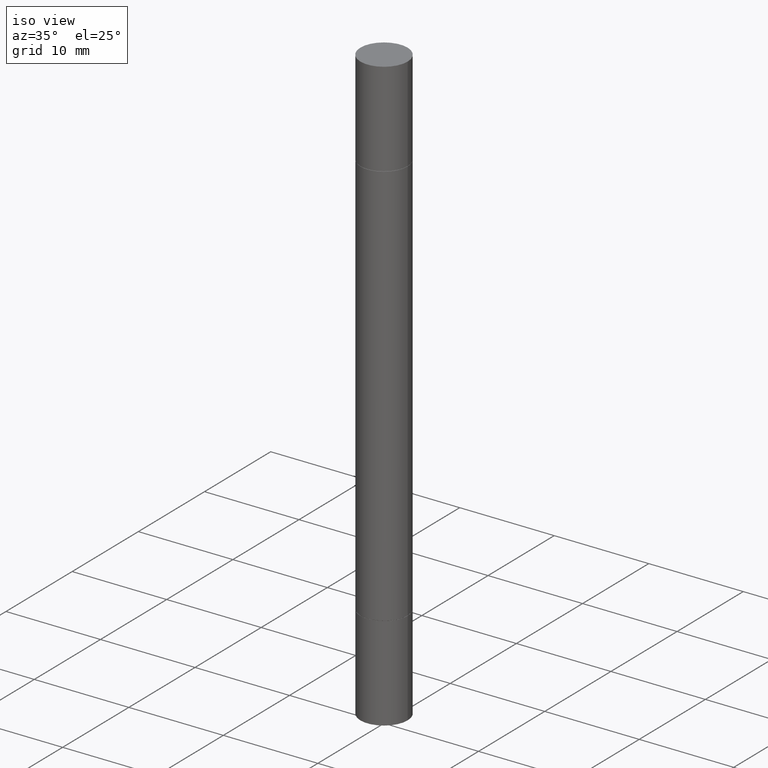
[diagram: clean part render]
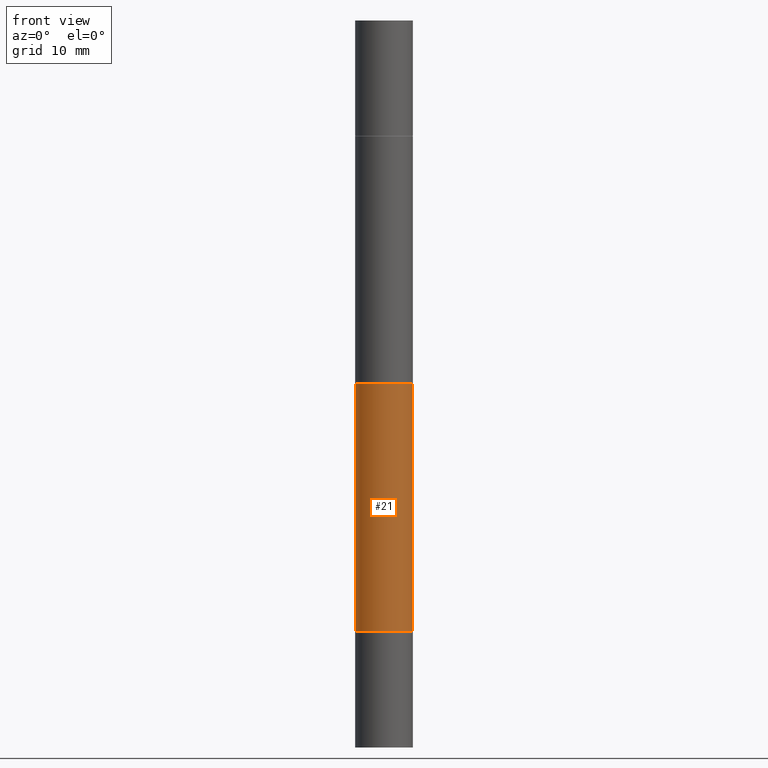
[diagram: tour spotlight — one face highlighted and labeled with its STEP entity id]
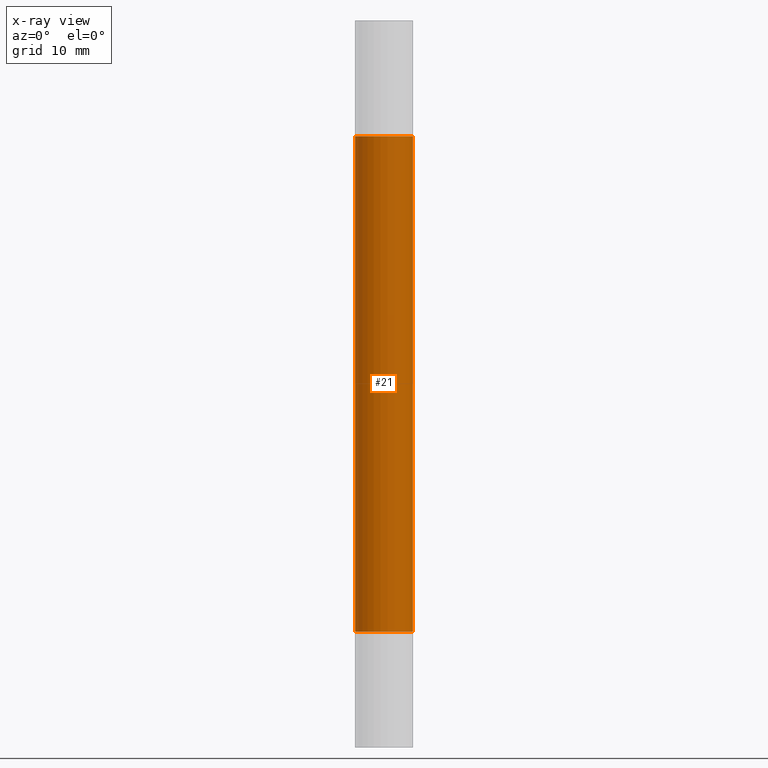
[diagram: x-ray of the same camera — body ghosted, this tour face saturated]
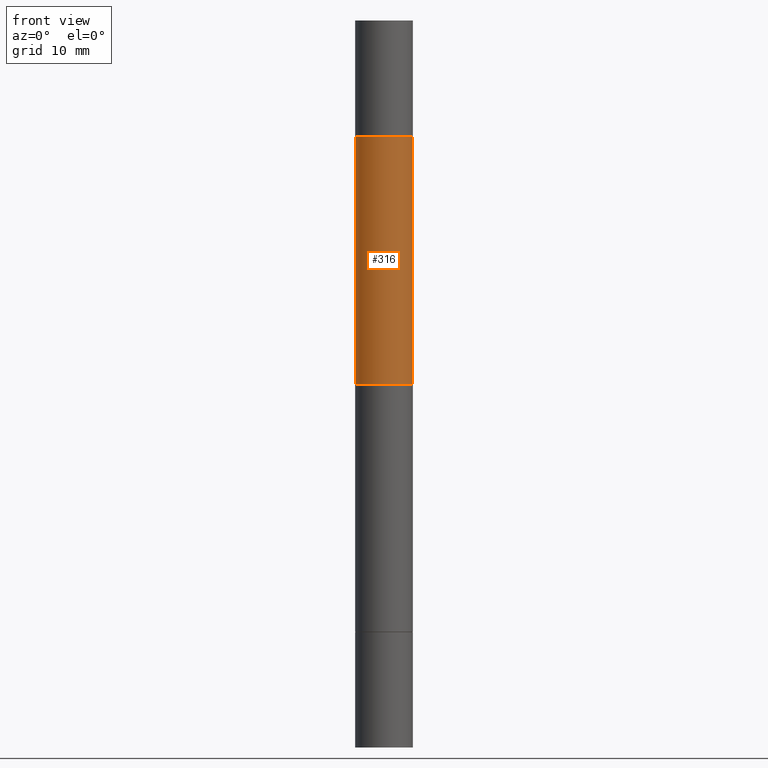
[diagram: tour spotlight — one face highlighted and labeled with its STEP entity id]
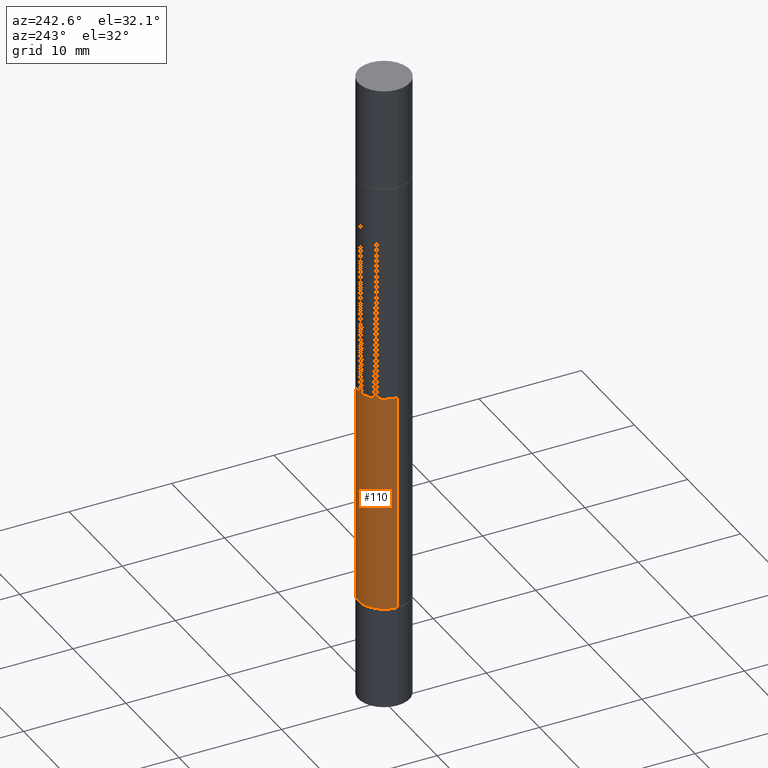
[diagram: tour spotlight — one face highlighted and labeled with its STEP entity id]
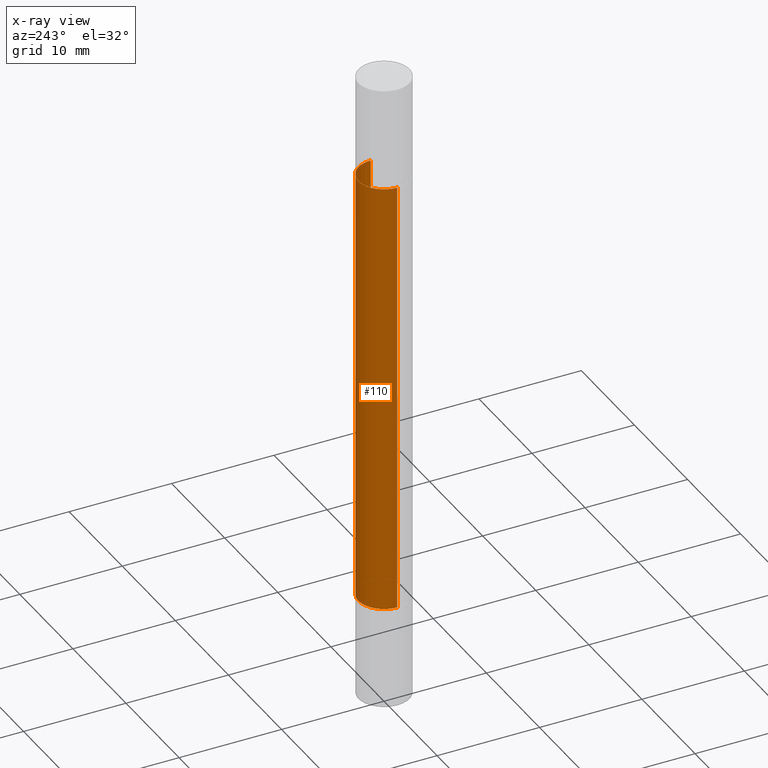
[diagram: x-ray of the same camera — body ghosted, this tour face saturated]
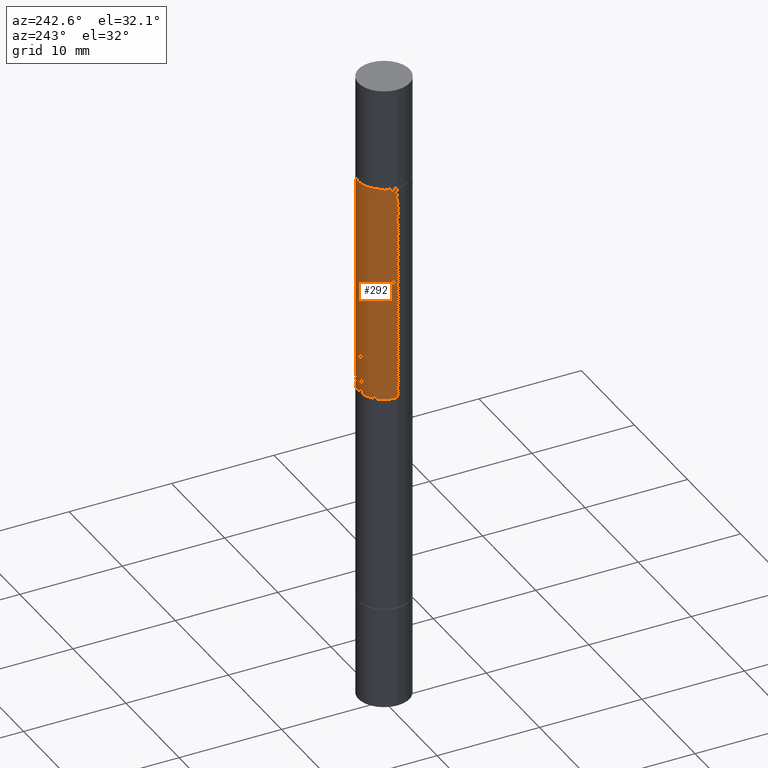
[diagram: tour spotlight — one face highlighted and labeled with its STEP entity id]
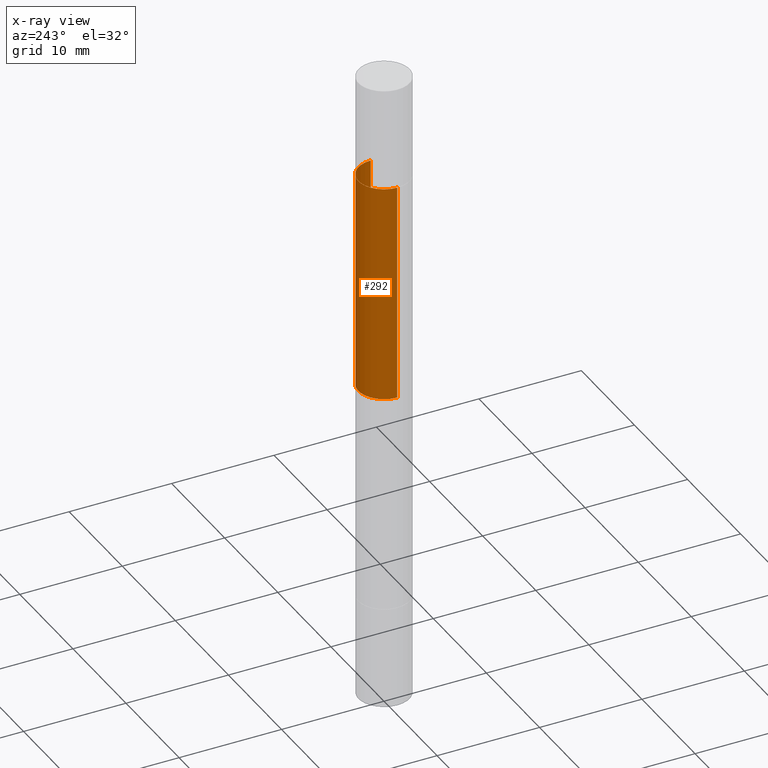
[diagram: x-ray of the same camera — body ghosted, this tour face saturated]
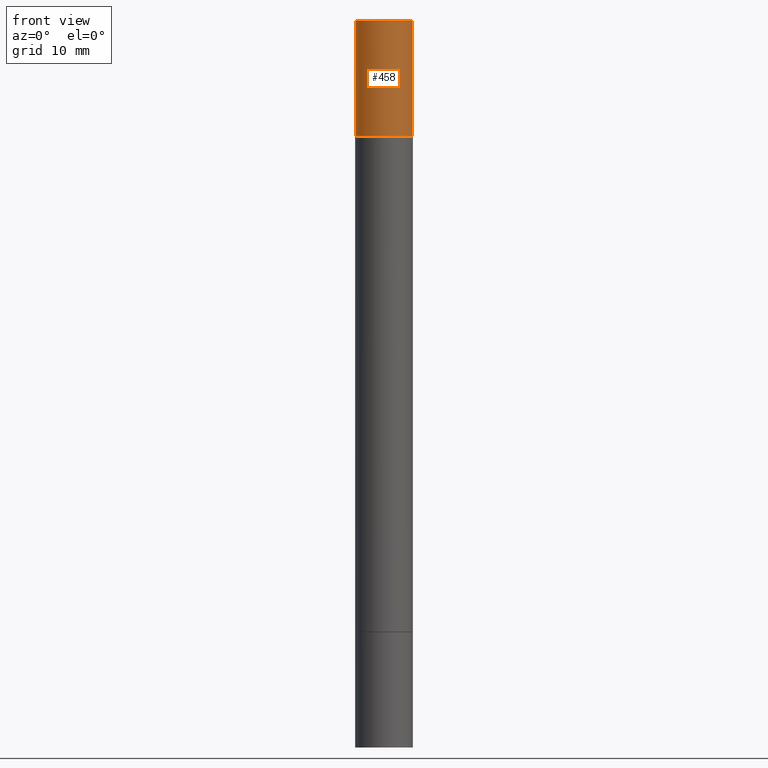
[diagram: tour spotlight — one face highlighted and labeled with its STEP entity id]
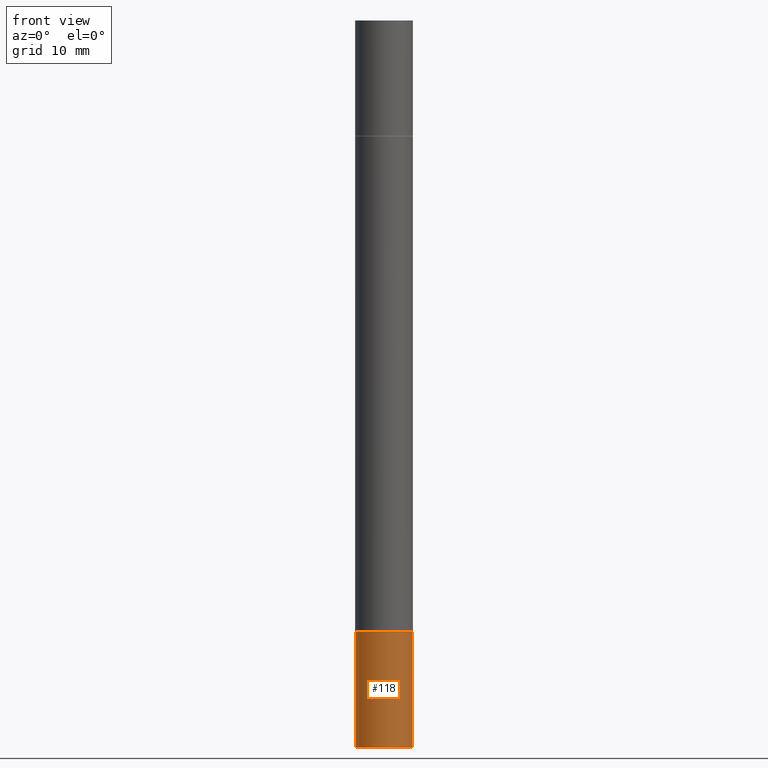
[diagram: tour spotlight — one face highlighted and labeled with its STEP entity id]
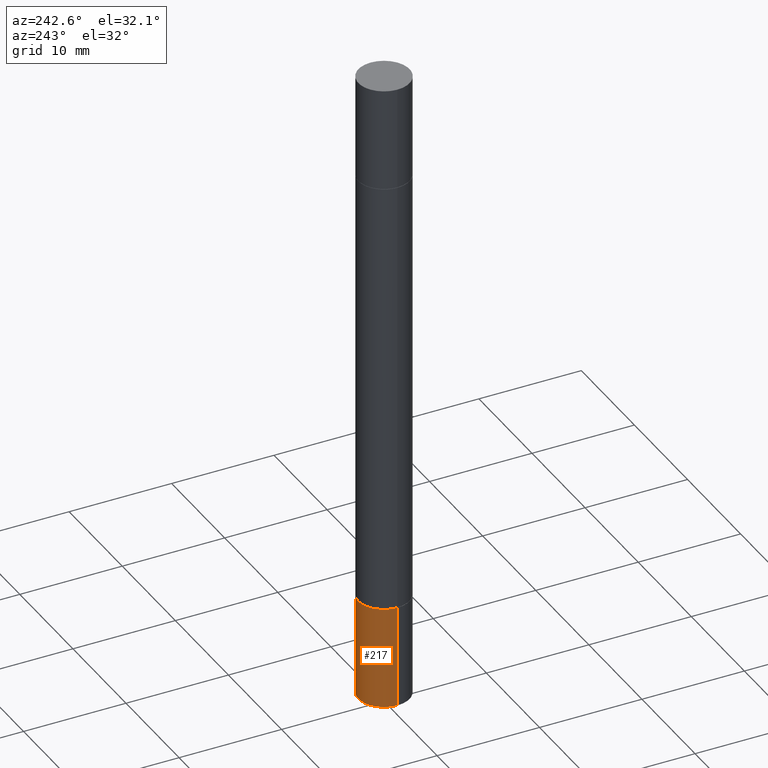
[diagram: tour spotlight — one face highlighted and labeled with its STEP entity id]
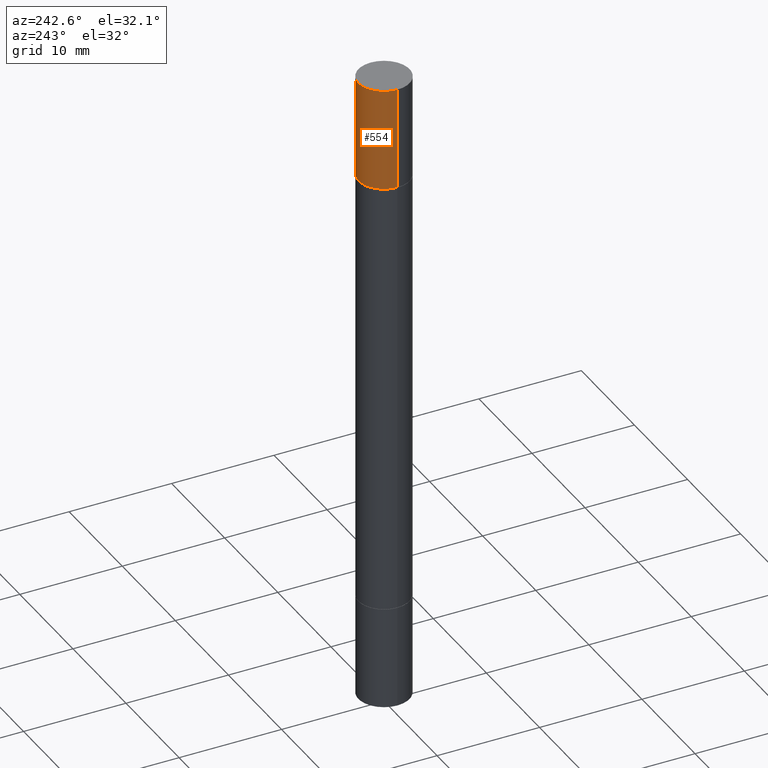
[diagram: tour spotlight — one face highlighted and labeled with its STEP entity id]
A machine part: a face-by-face anatomy tour. The part has 26 B-rep faces; the first image is the clean iso view, then the 8 largest visible faces are spotlighted one at a time (largest first), each with its STEP entity span.

Face 1 — front view, entity #21. An x-ray twin of the same camera follows (body ghosted, this face saturated) — the face is partly hidden behind the body. In plain terms, the highlighted cylindrical surface (edge-blend (fillet) strip) has radius 2.5006 mm, axis along (-0, -0, -1).
Definition (entity closure, byte-faithful):
#5 = DIRECTION ( 'NONE',  ( -2.445468806185136597E-29, 3.491481338843145583E-15, 1.000000000000000000 ) ) ;
#14 = DIRECTION ( 'NONE',  ( 1.000000000000000000, -6.982962677686266711E-15, 0.000000000000000000 ) ) ;
#16 = FACE_OUTER_BOUND ( 'NONE', #126, .T. ) ;
#21 = ADVANCED_FACE ( 'NONE', ( #16 ), #222, .T. ) ;
#22 = CARTESIAN_POINT ( 'NONE',  ( -0.09844999999999985707, -7.986252598371625706E-15, -2.480299999999999727 ) ) ;
#50 = AXIS2_PLACEMENT_3D ( 'NONE', #370, #227, #322 ) ;
#74 = CARTESIAN_POINT ( 'NONE',  ( 5.100269742179721794E-29, -1.376896383919896194E-15, -0.3946999999999994957 ) ) ;
#76 = CARTESIAN_POINT ( 'NONE',  ( 0.09844999999999985707, -9.349141301870445276E-15, -2.480299999999999727 ) ) ;
#77 = CARTESIAN_POINT ( 'NONE',  ( -0.09845000000000000973, -3.654544554485714347E-15, -2.085600000000000342 ) ) ;
#79 = VECTOR ( 'NONE', #436, 39.37007874015748143 ) ;
#95 = CARTESIAN_POINT ( 'NONE',  ( 0.09845000000000000973, -2.064369059538107571E-15, -0.3946999999999994957 ) ) ;
#126 = EDGE_LOOP ( 'NONE', ( #259, #179, #457, #393 ) ) ;
#132 = EDGE_CURVE ( 'NONE', #522, #557, #420, .T. ) ;
#179 = ORIENTED_EDGE ( 'NONE', *, *, #559, .T. ) ;
#222 = CYLINDRICAL_SURFACE ( 'NONE', #50, 0.09844999999999985707 ) ;
#227 = DIRECTION ( 'NONE',  ( -2.445468806185136597E-29, -3.492890411551752677E-15, -1.000000000000000000 ) ) ;
#240 = DIRECTION ( 'NONE',  ( -2.445468806185136877E-29, -3.492890411551753071E-15, -1.000000000000000000 ) ) ;
#259 = ORIENTED_EDGE ( 'NONE', *, *, #460, .F. ) ;
#263 = EDGE_CURVE ( 'NONE', #654, #557, #652, .T. ) ;
#303 = CARTESIAN_POINT ( 'NONE',  ( -0.09845000000000000973, -7.014803560392874095E-16, -0.3946999999999994957 ) ) ;
#322 = DIRECTION ( 'NONE',  ( 1.000000000000000000, -6.982962677686276177E-15, 0.000000000000000000 ) ) ;
#326 = VECTOR ( 'NONE', #240, 39.37007874015748143 ) ;
#328 = CARTESIAN_POINT ( 'NONE',  ( 0.09845000000000000973, -7.969306155909478547E-15, -2.085600000000000342 ) ) ;
#370 = CARTESIAN_POINT ( 'NONE',  ( 0.000000000000000000, -8.661668626252231138E-15, -2.480299999999999727 ) ) ;
#376 = DIRECTION ( 'NONE',  ( 2.445468806185136597E-29, 3.492890411551752677E-15, 1.000000000000000000 ) ) ;
#390 = VERTEX_POINT ( 'NONE', #303 ) ;
#393 = ORIENTED_EDGE ( 'NONE', *, *, #263, .F. ) ;
#420 = CIRCLE ( 'NONE', #476, 0.09845000000000000973 ) ;
#424 = CARTESIAN_POINT ( 'NONE',  ( 5.100269742179721794E-29, -7.281833480291265987E-15, -2.085600000000000342 ) ) ;
#436 = DIRECTION ( 'NONE',  ( -2.445468806185136877E-29, -3.492890411551753071E-15, -1.000000000000000000 ) ) ;
#457 = ORIENTED_EDGE ( 'NONE', *, *, #132, .T. ) ;
#460 = EDGE_CURVE ( 'NONE', #390, #654, #511, .T. ) ;
#476 = AXIS2_PLACEMENT_3D ( 'NONE', #424, #5, #534 ) ;
#511 = CIRCLE ( 'NONE', #565, 0.09845000000000000973 ) ;
#522 = VERTEX_POINT ( 'NONE', #77 ) ;
#534 = DIRECTION ( 'NONE',  ( 1.000000000000000000, -6.982962677686265133E-15, 0.000000000000000000 ) ) ;
#536 = LINE ( 'NONE', #22, #79 ) ;
#557 = VERTEX_POINT ( 'NONE', #328 ) ;
#559 = EDGE_CURVE ( 'NONE', #390, #522, #536, .T. ) ;
#565 = AXIS2_PLACEMENT_3D ( 'NONE', #74, #376, #14 ) ;
#652 = LINE ( 'NONE', #76, #326 ) ;
#654 = VERTEX_POINT ( 'NONE', #95 ) ;

Face 2 — front view, entity #316. In plain terms, the highlighted cylindrical surface (edge-blend (fillet) strip) has radius 2.5006 mm, axis along (-0, -0, -1).
Definition (entity closure, byte-faithful):
#49 = DIRECTION ( 'NONE',  ( -2.445468806185136877E-29, -3.492890411551753071E-15, -1.000000000000000000 ) ) ;
#61 = AXIS2_PLACEMENT_3D ( 'NONE', #414, #355, #634 ) ;
#87 = DIRECTION ( 'NONE',  ( 2.445468806185136597E-29, 3.492890411551752677E-15, 1.000000000000000000 ) ) ;
#115 = CARTESIAN_POINT ( 'NONE',  ( 0.09845000000000000973, -2.064369059538107571E-15, -0.3946999999999994957 ) ) ;
#133 = ORIENTED_EDGE ( 'NONE', *, *, #335, .T. ) ;
#152 = CYLINDRICAL_SURFACE ( 'NONE', #157, 0.09844999999999985707 ) ;
#157 = AXIS2_PLACEMENT_3D ( 'NONE', #251, #474, #209 ) ;
#182 = DIRECTION ( 'NONE',  ( -2.445468806185136877E-29, -3.492890411551753071E-15, -1.000000000000000000 ) ) ;
#186 = VERTEX_POINT ( 'NONE', #563 ) ;
#188 = EDGE_CURVE ( 'NONE', #462, #398, #564, .T. ) ;
#208 = VERTEX_POINT ( 'NONE', #345 ) ;
#209 = DIRECTION ( 'NONE',  ( 1.000000000000000000, -6.982962677686276177E-15, 0.000000000000000000 ) ) ;
#231 = CARTESIAN_POINT ( 'NONE',  ( 0.09844999999999985707, -9.349141301870445276E-15, -2.480299999999999727 ) ) ;
#234 = VECTOR ( 'NONE', #49, 39.37007874015748143 ) ;
#251 = CARTESIAN_POINT ( 'NONE',  ( 0.000000000000000000, -8.661668626252231138E-15, -2.480299999999999727 ) ) ;
#255 = EDGE_LOOP ( 'NONE', ( #667, #133, #281, #360 ) ) ;
#264 = AXIS2_PLACEMENT_3D ( 'NONE', #394, #87, #300 ) ;
#281 = ORIENTED_EDGE ( 'NONE', *, *, #389, .F. ) ;
#300 = DIRECTION ( 'NONE',  ( 1.000000000000000000, -6.982962677686266711E-15, 0.000000000000000000 ) ) ;
#316 = ADVANCED_FACE ( 'NONE', ( #579 ), #152, .T. ) ;
#327 = CIRCLE ( 'NONE', #61, 0.09844999999999985707 ) ;
#335 = EDGE_CURVE ( 'NONE', #462, #186, #678, .T. ) ;
#345 = CARTESIAN_POINT ( 'NONE',  ( 0.09844999999999985707, -3.540901158761321730E-15, -1.240149999999999864 ) ) ;
#355 = DIRECTION ( 'NONE',  ( -0.000000000000000000, -3.492185875197449130E-15, -1.000000000000000000 ) ) ;
#360 = ORIENTED_EDGE ( 'NONE', *, *, #488, .F. ) ;
#389 = EDGE_CURVE ( 'NONE', #208, #186, #327, .T. ) ;
#394 = CARTESIAN_POINT ( 'NONE',  ( 5.100269742179721794E-29, -1.376896383919896194E-15, -0.3946999999999994957 ) ) ;
#398 = VERTEX_POINT ( 'NONE', #115 ) ;
#405 = CARTESIAN_POINT ( 'NONE',  ( -0.09844999999999985707, -7.986252598371625706E-15, -2.480299999999999727 ) ) ;
#414 = CARTESIAN_POINT ( 'NONE',  ( 3.032748139990496817E-29, -4.329960582366326879E-15, -1.240149999999999864 ) ) ;
#429 = CARTESIAN_POINT ( 'NONE',  ( -0.09845000000000000973, -7.014803560392874095E-16, -0.3946999999999994957 ) ) ;
#462 = VERTEX_POINT ( 'NONE', #429 ) ;
#474 = DIRECTION ( 'NONE',  ( -2.445468806185136597E-29, -3.492890411551752677E-15, -1.000000000000000000 ) ) ;
#486 = VECTOR ( 'NONE', #182, 39.37007874015748143 ) ;
#488 = EDGE_CURVE ( 'NONE', #398, #208, #641, .T. ) ;
#563 = CARTESIAN_POINT ( 'NONE',  ( -0.09844999999999985707, -2.178012455262503343E-15, -1.240149999999999864 ) ) ;
#564 = CIRCLE ( 'NONE', #264, 0.09845000000000000973 ) ;
#579 = FACE_OUTER_BOUND ( 'NONE', #255, .T. ) ;
#634 = DIRECTION ( 'NONE',  ( 0.000000000000000000, 1.000000000000000000, -2.774858297271983109E-15 ) ) ;
#641 = LINE ( 'NONE', #231, #486 ) ;
#667 = ORIENTED_EDGE ( 'NONE', *, *, #188, .F. ) ;
#678 = LINE ( 'NONE', #405, #234 ) ;

Face 3 — auxiliary view, entity #110. An x-ray twin of the same camera follows (body ghosted, this face saturated) — the face is partly hidden behind the body. In plain terms, the highlighted cylindrical surface (edge-blend (fillet) strip) has radius 2.5006 mm, axis along (-0, -0, -1).
Definition (entity closure, byte-faithful):
#22 = CARTESIAN_POINT ( 'NONE',  ( -0.09844999999999985707, -7.986252598371625706E-15, -2.480299999999999727 ) ) ;
#55 = EDGE_CURVE ( 'NONE', #654, #390, #670, .T. ) ;
#67 = AXIS2_PLACEMENT_3D ( 'NONE', #546, #377, #381 ) ;
#68 = ORIENTED_EDGE ( 'NONE', *, *, #263, .T. ) ;
#76 = CARTESIAN_POINT ( 'NONE',  ( 0.09844999999999985707, -9.349141301870445276E-15, -2.480299999999999727 ) ) ;
#77 = CARTESIAN_POINT ( 'NONE',  ( -0.09845000000000000973, -3.654544554485714347E-15, -2.085600000000000342 ) ) ;
#79 = VECTOR ( 'NONE', #436, 39.37007874015748143 ) ;
#95 = CARTESIAN_POINT ( 'NONE',  ( 0.09845000000000000973, -2.064369059538107571E-15, -0.3946999999999994957 ) ) ;
#110 = ADVANCED_FACE ( 'NONE', ( #480 ), #173, .T. ) ;
#111 = AXIS2_PLACEMENT_3D ( 'NONE', #553, #247, #612 ) ;
#167 = DIRECTION ( 'NONE',  ( 2.445468806185136597E-29, 3.492890411551752677E-15, 1.000000000000000000 ) ) ;
#173 = CYLINDRICAL_SURFACE ( 'NONE', #67, 0.09844999999999985707 ) ;
#199 = ORIENTED_EDGE ( 'NONE', *, *, #559, .F. ) ;
#226 = EDGE_CURVE ( 'NONE', #557, #522, #628, .T. ) ;
#240 = DIRECTION ( 'NONE',  ( -2.445468806185136877E-29, -3.492890411551753071E-15, -1.000000000000000000 ) ) ;
#247 = DIRECTION ( 'NONE',  ( -2.445468806185136597E-29, 3.491481338843145583E-15, 1.000000000000000000 ) ) ;
#250 = ORIENTED_EDGE ( 'NONE', *, *, #226, .T. ) ;
#263 = EDGE_CURVE ( 'NONE', #654, #557, #652, .T. ) ;
#303 = CARTESIAN_POINT ( 'NONE',  ( -0.09845000000000000973, -7.014803560392874095E-16, -0.3946999999999994957 ) ) ;
#326 = VECTOR ( 'NONE', #240, 39.37007874015748143 ) ;
#328 = CARTESIAN_POINT ( 'NONE',  ( 0.09845000000000000973, -7.969306155909478547E-15, -2.085600000000000342 ) ) ;
#337 = ORIENTED_EDGE ( 'NONE', *, *, #55, .F. ) ;
#377 = DIRECTION ( 'NONE',  ( -2.445468806185136597E-29, -3.492890411551752677E-15, -1.000000000000000000 ) ) ;
#381 = DIRECTION ( 'NONE',  ( 1.000000000000000000, -6.982962677686276177E-15, 0.000000000000000000 ) ) ;
#390 = VERTEX_POINT ( 'NONE', #303 ) ;
#436 = DIRECTION ( 'NONE',  ( -2.445468806185136877E-29, -3.492890411551753071E-15, -1.000000000000000000 ) ) ;
#437 = EDGE_LOOP ( 'NONE', ( #199, #337, #68, #250 ) ) ;
#480 = FACE_OUTER_BOUND ( 'NONE', #437, .T. ) ;
#522 = VERTEX_POINT ( 'NONE', #77 ) ;
#529 = AXIS2_PLACEMENT_3D ( 'NONE', #537, #167, #587 ) ;
#536 = LINE ( 'NONE', #22, #79 ) ;
#537 = CARTESIAN_POINT ( 'NONE',  ( 5.100269742179721794E-29, -1.376896383919896194E-15, -0.3946999999999994957 ) ) ;
#546 = CARTESIAN_POINT ( 'NONE',  ( 0.000000000000000000, -8.661668626252231138E-15, -2.480299999999999727 ) ) ;
#553 = CARTESIAN_POINT ( 'NONE',  ( 5.100269742179721794E-29, -7.281833480291265987E-15, -2.085600000000000342 ) ) ;
#557 = VERTEX_POINT ( 'NONE', #328 ) ;
#559 = EDGE_CURVE ( 'NONE', #390, #522, #536, .T. ) ;
#587 = DIRECTION ( 'NONE',  ( 1.000000000000000000, -6.982962677686266711E-15, 0.000000000000000000 ) ) ;
#612 = DIRECTION ( 'NONE',  ( 1.000000000000000000, -6.982962677686265133E-15, 0.000000000000000000 ) ) ;
#628 = CIRCLE ( 'NONE', #111, 0.09845000000000000973 ) ;
#652 = LINE ( 'NONE', #76, #326 ) ;
#654 = VERTEX_POINT ( 'NONE', #95 ) ;
#670 = CIRCLE ( 'NONE', #529, 0.09845000000000000973 ) ;

Face 4 — auxiliary view, entity #292. An x-ray twin of the same camera follows (body ghosted, this face saturated) — the face is partly hidden behind the body. In plain terms, the highlighted cylindrical surface (edge-blend (fillet) strip) has radius 2.5006 mm, axis along (-0, -0, -1).
Definition (entity closure, byte-faithful):
#1 = AXIS2_PLACEMENT_3D ( 'NONE', #375, #435, #589 ) ;
#31 = ORIENTED_EDGE ( 'NONE', *, *, #597, .F. ) ;
#32 = DIRECTION ( 'NONE',  ( -2.445468806185136597E-29, -3.492890411551752677E-15, -1.000000000000000000 ) ) ;
#45 = EDGE_CURVE ( 'NONE', #398, #462, #175, .T. ) ;
#48 = ORIENTED_EDGE ( 'NONE', *, *, #488, .T. ) ;
#49 = DIRECTION ( 'NONE',  ( -2.445468806185136877E-29, -3.492890411551753071E-15, -1.000000000000000000 ) ) ;
#72 = DIRECTION ( 'NONE',  ( -0.000000000000000000, -3.492185875197449130E-15, -1.000000000000000000 ) ) ;
#115 = CARTESIAN_POINT ( 'NONE',  ( 0.09845000000000000973, -2.064369059538107571E-15, -0.3946999999999994957 ) ) ;
#123 = CIRCLE ( 'NONE', #212, 0.09844999999999985707 ) ;
#127 = CARTESIAN_POINT ( 'NONE',  ( 0.000000000000000000, -8.661668626252231138E-15, -2.480299999999999727 ) ) ;
#175 = CIRCLE ( 'NONE', #1, 0.09845000000000000973 ) ;
#182 = DIRECTION ( 'NONE',  ( -2.445468806185136877E-29, -3.492890411551753071E-15, -1.000000000000000000 ) ) ;
#185 = CYLINDRICAL_SURFACE ( 'NONE', #211, 0.09844999999999985707 ) ;
#186 = VERTEX_POINT ( 'NONE', #563 ) ;
#208 = VERTEX_POINT ( 'NONE', #345 ) ;
#211 = AXIS2_PLACEMENT_3D ( 'NONE', #127, #32, #242 ) ;
#212 = AXIS2_PLACEMENT_3D ( 'NONE', #653, #72, #332 ) ;
#231 = CARTESIAN_POINT ( 'NONE',  ( 0.09844999999999985707, -9.349141301870445276E-15, -2.480299999999999727 ) ) ;
#234 = VECTOR ( 'NONE', #49, 39.37007874015748143 ) ;
#242 = DIRECTION ( 'NONE',  ( 1.000000000000000000, -6.982962677686276177E-15, 0.000000000000000000 ) ) ;
#292 = ADVANCED_FACE ( 'NONE', ( #342 ), #185, .T. ) ;
#332 = DIRECTION ( 'NONE',  ( 0.000000000000000000, 1.000000000000000000, -2.774858297271983109E-15 ) ) ;
#335 = EDGE_CURVE ( 'NONE', #462, #186, #678, .T. ) ;
#342 = FACE_OUTER_BOUND ( 'NONE', #466, .T. ) ;
#345 = CARTESIAN_POINT ( 'NONE',  ( 0.09844999999999985707, -3.540901158761321730E-15, -1.240149999999999864 ) ) ;
#346 = ORIENTED_EDGE ( 'NONE', *, *, #45, .F. ) ;
#375 = CARTESIAN_POINT ( 'NONE',  ( 5.100269742179721794E-29, -1.376896383919896194E-15, -0.3946999999999994957 ) ) ;
#398 = VERTEX_POINT ( 'NONE', #115 ) ;
#405 = CARTESIAN_POINT ( 'NONE',  ( -0.09844999999999985707, -7.986252598371625706E-15, -2.480299999999999727 ) ) ;
#429 = CARTESIAN_POINT ( 'NONE',  ( -0.09845000000000000973, -7.014803560392874095E-16, -0.3946999999999994957 ) ) ;
#435 = DIRECTION ( 'NONE',  ( 2.445468806185136597E-29, 3.492890411551752677E-15, 1.000000000000000000 ) ) ;
#462 = VERTEX_POINT ( 'NONE', #429 ) ;
#466 = EDGE_LOOP ( 'NONE', ( #490, #346, #48, #31 ) ) ;
#486 = VECTOR ( 'NONE', #182, 39.37007874015748143 ) ;
#488 = EDGE_CURVE ( 'NONE', #398, #208, #641, .T. ) ;
#490 = ORIENTED_EDGE ( 'NONE', *, *, #335, .F. ) ;
#563 = CARTESIAN_POINT ( 'NONE',  ( -0.09844999999999985707, -2.178012455262503343E-15, -1.240149999999999864 ) ) ;
#589 = DIRECTION ( 'NONE',  ( 1.000000000000000000, -6.982962677686266711E-15, 0.000000000000000000 ) ) ;
#597 = EDGE_CURVE ( 'NONE', #186, #208, #123, .T. ) ;
#641 = LINE ( 'NONE', #231, #486 ) ;
#653 = CARTESIAN_POINT ( 'NONE',  ( 3.032748139990496817E-29, -4.329960582366326879E-15, -1.240149999999999864 ) ) ;
#678 = LINE ( 'NONE', #405, #234 ) ;

Face 5 — front view, entity #458. In plain terms, the highlighted cylindrical surface (edge-blend (fillet) strip) has radius 2.5006 mm, axis along (-0, -0, -1).
Definition (entity closure, byte-faithful):
#27 = CARTESIAN_POINT ( 'NONE',  ( -0.09844999999999999585, -7.986252598371625706E-15, -2.480299999999999727 ) ) ;
#43 = CARTESIAN_POINT ( 'NONE',  ( 0.09844999999999999585, -9.349141301870445276E-15, -2.480299999999999727 ) ) ;
#69 = VECTOR ( 'NONE', #220, 39.37007874015748143 ) ;
#101 = VERTEX_POINT ( 'NONE', #317 ) ;
#112 = CIRCLE ( 'NONE', #636, 0.09844999999999999585 ) ;
#122 = ORIENTED_EDGE ( 'NONE', *, *, #544, .T. ) ;
#125 = DIRECTION ( 'NONE',  ( 2.445468806185136597E-29, 3.492890411551752677E-15, 1.000000000000000000 ) ) ;
#135 = AXIS2_PLACEMENT_3D ( 'NONE', #321, #459, #254 ) ;
#163 = CIRCLE ( 'NONE', #135, 0.09844999999999999585 ) ;
#168 = CYLINDRICAL_SURFACE ( 'NONE', #441, 0.09844999999999999585 ) ;
#176 = ORIENTED_EDGE ( 'NONE', *, *, #672, .F. ) ;
#220 = DIRECTION ( 'NONE',  ( -2.445468806185136877E-29, -3.492890411551753071E-15, -1.000000000000000000 ) ) ;
#244 = ORIENTED_EDGE ( 'NONE', *, *, #430, .F. ) ;
#249 = LINE ( 'NONE', #43, #258 ) ;
#254 = DIRECTION ( 'NONE',  ( 1.000000000000000000, -6.982962677686266711E-15, 0.000000000000000000 ) ) ;
#258 = VECTOR ( 'NONE', #517, 39.37007874015748143 ) ;
#261 = CARTESIAN_POINT ( 'NONE',  ( -0.09844999999999999585, -1.041198811377363761E-17, -0.3936999999999993838 ) ) ;
#271 = LINE ( 'NONE', #27, #69 ) ;
#279 = CARTESIAN_POINT ( 'NONE',  ( 5.102715210985907397E-29, -1.373403493508342672E-15, -0.3936999999999993838 ) ) ;
#317 = CARTESIAN_POINT ( 'NONE',  ( 0.09844999999999999585, -6.857252140986324187E-16, 5.463695987328526437E-16 ) ) ;
#321 = CARTESIAN_POINT ( 'NONE',  ( 6.065496279980994755E-29, 1.747461519580534218E-18, 5.463695987328526437E-16 ) ) ;
#333 = VERTEX_POINT ( 'NONE', #666 ) ;
#379 = VERTEX_POINT ( 'NONE', #261 ) ;
#388 = FACE_OUTER_BOUND ( 'NONE', #404, .T. ) ;
#392 = CARTESIAN_POINT ( 'NONE',  ( 0.09844999999999999585, -2.060876169126555429E-15, -0.3936999999999993838 ) ) ;
#404 = EDGE_LOOP ( 'NONE', ( #244, #415, #122, #176 ) ) ;
#415 = ORIENTED_EDGE ( 'NONE', *, *, #479, .T. ) ;
#430 = EDGE_CURVE ( 'NONE', #333, #101, #163, .T. ) ;
#441 = AXIS2_PLACEMENT_3D ( 'NONE', #489, #495, #550 ) ;
#458 = ADVANCED_FACE ( 'NONE', ( #388 ), #168, .T. ) ;
#459 = DIRECTION ( 'NONE',  ( 2.445468806185136597E-29, 3.492890411551752677E-15, 1.000000000000000000 ) ) ;
#479 = EDGE_CURVE ( 'NONE', #333, #379, #271, .T. ) ;
#489 = CARTESIAN_POINT ( 'NONE',  ( 0.000000000000000000, -8.661668626252231138E-15, -2.480299999999999727 ) ) ;
#495 = DIRECTION ( 'NONE',  ( -2.445468806185136597E-29, -3.492890411551752677E-15, -1.000000000000000000 ) ) ;
#517 = DIRECTION ( 'NONE',  ( -2.445468806185136877E-29, -3.492890411551753071E-15, -1.000000000000000000 ) ) ;
#538 = DIRECTION ( 'NONE',  ( 1.000000000000000000, -6.982962677686265922E-15, 0.000000000000000000 ) ) ;
#544 = EDGE_CURVE ( 'NONE', #379, #599, #112, .T. ) ;
#550 = DIRECTION ( 'NONE',  ( 1.000000000000000000, -6.982962677686265922E-15, 0.000000000000000000 ) ) ;
#599 = VERTEX_POINT ( 'NONE', #392 ) ;
#636 = AXIS2_PLACEMENT_3D ( 'NONE', #279, #125, #538 ) ;
#666 = CARTESIAN_POINT ( 'NONE',  ( -0.09844999999999999585, -1.041198811377375779E-17, 5.463695987328551089E-16 ) ) ;
#672 = EDGE_CURVE ( 'NONE', #101, #599, #249, .T. ) ;

Face 6 — front view, entity #118. In plain terms, the highlighted cylindrical surface (edge-blend (fillet) strip) has radius 2.5006 mm, axis along (-0, 0, 1).
Definition (entity closure, byte-faithful):
#20 = DIRECTION ( 'NONE',  ( 1.000000000000000000, -6.982962677686266711E-15, 4.876176775795936353E-29 ) ) ;
#28 = EDGE_LOOP ( 'NONE', ( #309, #34, #512, #287 ) ) ;
#34 = ORIENTED_EDGE ( 'NONE', *, *, #525, .T. ) ;
#41 = VERTEX_POINT ( 'NONE', #531 ) ;
#42 = CARTESIAN_POINT ( 'NONE',  ( 5.102715210985907397E-29, -7.285324961630108994E-15, -2.086600000000000232 ) ) ;
#73 = FACE_OUTER_BOUND ( 'NONE', #28, .T. ) ;
#97 = DIRECTION ( 'NONE',  ( 1.000000000000000000, -6.982962677686265922E-15, 0.000000000000000000 ) ) ;
#117 = DIRECTION ( 'NONE',  ( -2.445468806185136597E-29, 3.491481338843145583E-15, 1.000000000000000000 ) ) ;
#118 = ADVANCED_FACE ( 'NONE', ( #73 ), #282, .T. ) ;
#134 = AXIS2_PLACEMENT_3D ( 'NONE', #494, #320, #20 ) ;
#142 = VERTEX_POINT ( 'NONE', #426 ) ;
#156 = VECTOR ( 'NONE', #497, 39.37007874015748143 ) ;
#177 = CARTESIAN_POINT ( 'NONE',  ( -0.09844999999999999585, 6.995293233558186035E-16, -4.842691596355954042E-30 ) ) ;
#189 = AXIS2_PLACEMENT_3D ( 'NONE', #651, #117, #598 ) ;
#206 = EDGE_CURVE ( 'NONE', #142, #595, #648, .T. ) ;
#265 = AXIS2_PLACEMENT_3D ( 'NONE', #42, #519, #97 ) ;
#282 = CYLINDRICAL_SURFACE ( 'NONE', #134, 0.09844999999999999585 ) ;
#283 = CARTESIAN_POINT ( 'NONE',  ( 0.09844999999999999585, -7.972797637248321554E-15, -2.086600000000000232 ) ) ;
#287 = ORIENTED_EDGE ( 'NONE', *, *, #400, .F. ) ;
#288 = CARTESIAN_POINT ( 'NONE',  ( 0.09844999999999999585, -6.874726756182129545E-16, 4.800596035771099214E-30 ) ) ;
#299 = CIRCLE ( 'NONE', #189, 0.09844999999999999585 ) ;
#306 = EDGE_CURVE ( 'NONE', #41, #455, #403, .T. ) ;
#309 = ORIENTED_EDGE ( 'NONE', *, *, #306, .F. ) ;
#312 = CIRCLE ( 'NONE', #265, 0.09844999999999999585 ) ;
#320 = DIRECTION ( 'NONE',  ( -2.445468806185136597E-29, 3.491481338843145583E-15, 1.000000000000000000 ) ) ;
#334 = DIRECTION ( 'NONE',  ( -2.445468806185136877E-29, 3.491481338843145188E-15, 1.000000000000000000 ) ) ;
#400 = EDGE_CURVE ( 'NONE', #455, #595, #312, .T. ) ;
#403 = LINE ( 'NONE', #177, #510 ) ;
#426 = CARTESIAN_POINT ( 'NONE',  ( 0.09844999999999999585, -9.347393840350869473E-15, -2.480300000000000171 ) ) ;
#442 = CARTESIAN_POINT ( 'NONE',  ( -0.09844999999999999585, -7.273093739825564054E-15, -2.086600000000000232 ) ) ;
#455 = VERTEX_POINT ( 'NONE', #442 ) ;
#494 = CARTESIAN_POINT ( 'NONE',  ( 0.000000000000000000, 0.000000000000000000, 0.000000000000000000 ) ) ;
#497 = DIRECTION ( 'NONE',  ( -2.445468806185136877E-29, 3.491481338843145188E-15, 1.000000000000000000 ) ) ;
#510 = VECTOR ( 'NONE', #334, 39.37007874015748143 ) ;
#512 = ORIENTED_EDGE ( 'NONE', *, *, #206, .T. ) ;
#519 = DIRECTION ( 'NONE',  ( -2.445468806185136597E-29, 3.491481338843145583E-15, 1.000000000000000000 ) ) ;
#525 = EDGE_CURVE ( 'NONE', #41, #142, #299, .T. ) ;
#531 = CARTESIAN_POINT ( 'NONE',  ( -0.09844999999999999585, -7.273093739825564054E-15, -2.480300000000000171 ) ) ;
#595 = VERTEX_POINT ( 'NONE', #283 ) ;
#598 = DIRECTION ( 'NONE',  ( 1.000000000000000000, -6.982962677686274599E-15, 0.000000000000000000 ) ) ;
#648 = LINE ( 'NONE', #288, #156 ) ;
#651 = CARTESIAN_POINT ( 'NONE',  ( 6.065496279980994755E-29, -8.659921164732655335E-15, -2.480300000000000171 ) ) ;

Face 7 — auxiliary view, entity #217. In plain terms, the highlighted cylindrical surface (edge-blend (fillet) strip) has radius 2.5006 mm, axis along (-0, 0, 1).
Definition (entity closure, byte-faithful):
#18 = EDGE_CURVE ( 'NONE', #595, #455, #147, .T. ) ;
#25 = CARTESIAN_POINT ( 'NONE',  ( 0.000000000000000000, 0.000000000000000000, 0.000000000000000000 ) ) ;
#41 = VERTEX_POINT ( 'NONE', #531 ) ;
#82 = ORIENTED_EDGE ( 'NONE', *, *, #18, .F. ) ;
#142 = VERTEX_POINT ( 'NONE', #426 ) ;
#147 = CIRCLE ( 'NONE', #219, 0.09844999999999999585 ) ;
#156 = VECTOR ( 'NONE', #497, 39.37007874015748143 ) ;
#177 = CARTESIAN_POINT ( 'NONE',  ( -0.09844999999999999585, 6.995293233558186035E-16, -4.842691596355954042E-30 ) ) ;
#190 = DIRECTION ( 'NONE',  ( -2.445468806185136597E-29, 3.491481338843145583E-15, 1.000000000000000000 ) ) ;
#202 = AXIS2_PLACEMENT_3D ( 'NONE', #362, #616, #576 ) ;
#206 = EDGE_CURVE ( 'NONE', #142, #595, #648, .T. ) ;
#217 = ADVANCED_FACE ( 'NONE', ( #391 ), #338, .T. ) ;
#219 = AXIS2_PLACEMENT_3D ( 'NONE', #428, #637, #633 ) ;
#233 = ORIENTED_EDGE ( 'NONE', *, *, #306, .T. ) ;
#245 = AXIS2_PLACEMENT_3D ( 'NONE', #25, #190, #509 ) ;
#283 = CARTESIAN_POINT ( 'NONE',  ( 0.09844999999999999585, -7.972797637248321554E-15, -2.086600000000000232 ) ) ;
#288 = CARTESIAN_POINT ( 'NONE',  ( 0.09844999999999999585, -6.874726756182129545E-16, 4.800596035771099214E-30 ) ) ;
#306 = EDGE_CURVE ( 'NONE', #41, #455, #403, .T. ) ;
#334 = DIRECTION ( 'NONE',  ( -2.445468806185136877E-29, 3.491481338843145188E-15, 1.000000000000000000 ) ) ;
#338 = CYLINDRICAL_SURFACE ( 'NONE', #245, 0.09844999999999999585 ) ;
#340 = ORIENTED_EDGE ( 'NONE', *, *, #363, .T. ) ;
#362 = CARTESIAN_POINT ( 'NONE',  ( 6.065496279980994755E-29, -8.659921164732655335E-15, -2.480300000000000171 ) ) ;
#363 = EDGE_CURVE ( 'NONE', #142, #41, #605, .T. ) ;
#385 = ORIENTED_EDGE ( 'NONE', *, *, #206, .F. ) ;
#391 = FACE_OUTER_BOUND ( 'NONE', #518, .T. ) ;
#403 = LINE ( 'NONE', #177, #510 ) ;
#426 = CARTESIAN_POINT ( 'NONE',  ( 0.09844999999999999585, -9.347393840350869473E-15, -2.480300000000000171 ) ) ;
#428 = CARTESIAN_POINT ( 'NONE',  ( 5.102715210985907397E-29, -7.285324961630108994E-15, -2.086600000000000232 ) ) ;
#442 = CARTESIAN_POINT ( 'NONE',  ( -0.09844999999999999585, -7.273093739825564054E-15, -2.086600000000000232 ) ) ;
#455 = VERTEX_POINT ( 'NONE', #442 ) ;
#497 = DIRECTION ( 'NONE',  ( -2.445468806185136877E-29, 3.491481338843145188E-15, 1.000000000000000000 ) ) ;
#509 = DIRECTION ( 'NONE',  ( 1.000000000000000000, -6.982962677686266711E-15, 4.876176775795936353E-29 ) ) ;
#510 = VECTOR ( 'NONE', #334, 39.37007874015748143 ) ;
#518 = EDGE_LOOP ( 'NONE', ( #340, #233, #82, #385 ) ) ;
#531 = CARTESIAN_POINT ( 'NONE',  ( -0.09844999999999999585, -7.273093739825564054E-15, -2.480300000000000171 ) ) ;
#576 = DIRECTION ( 'NONE',  ( 1.000000000000000000, -6.982962677686274599E-15, 0.000000000000000000 ) ) ;
#595 = VERTEX_POINT ( 'NONE', #283 ) ;
#605 = CIRCLE ( 'NONE', #202, 0.09844999999999999585 ) ;
#616 = DIRECTION ( 'NONE',  ( -2.445468806185136597E-29, 3.491481338843145583E-15, 1.000000000000000000 ) ) ;
#633 = DIRECTION ( 'NONE',  ( 1.000000000000000000, -6.982962677686265922E-15, 0.000000000000000000 ) ) ;
#637 = DIRECTION ( 'NONE',  ( -2.445468806185136597E-29, 3.491481338843145583E-15, 1.000000000000000000 ) ) ;
#648 = LINE ( 'NONE', #288, #156 ) ;

Face 8 — auxiliary view, entity #554. In plain terms, the highlighted cylindrical surface (edge-blend (fillet) strip) has radius 2.5006 mm, axis along (-0, -0, -1).
Definition (entity closure, byte-faithful):
#27 = CARTESIAN_POINT ( 'NONE',  ( -0.09844999999999999585, -7.986252598371625706E-15, -2.480299999999999727 ) ) ;
#43 = CARTESIAN_POINT ( 'NONE',  ( 0.09844999999999999585, -9.349141301870445276E-15, -2.480299999999999727 ) ) ;
#69 = VECTOR ( 'NONE', #220, 39.37007874015748143 ) ;
#101 = VERTEX_POINT ( 'NONE', #317 ) ;
#120 = DIRECTION ( 'NONE',  ( 1.000000000000000000, -6.982962677686265922E-15, 0.000000000000000000 ) ) ;
#171 = DIRECTION ( 'NONE',  ( 1.000000000000000000, -6.982962677686265922E-15, 0.000000000000000000 ) ) ;
#192 = ORIENTED_EDGE ( 'NONE', *, *, #535, .T. ) ;
#205 = CARTESIAN_POINT ( 'NONE',  ( 6.065496279980994755E-29, 1.747461519580534218E-18, 5.463695987328526437E-16 ) ) ;
#220 = DIRECTION ( 'NONE',  ( -2.445468806185136877E-29, -3.492890411551753071E-15, -1.000000000000000000 ) ) ;
#229 = ORIENTED_EDGE ( 'NONE', *, *, #479, .F. ) ;
#238 = CARTESIAN_POINT ( 'NONE',  ( 5.102715210985907397E-29, -1.373403493508342672E-15, -0.3936999999999993838 ) ) ;
#248 = ORIENTED_EDGE ( 'NONE', *, *, #367, .F. ) ;
#249 = LINE ( 'NONE', #43, #258 ) ;
#256 = DIRECTION ( 'NONE',  ( 2.445468806185136597E-29, 3.492890411551752677E-15, 1.000000000000000000 ) ) ;
#258 = VECTOR ( 'NONE', #517, 39.37007874015748143 ) ;
#261 = CARTESIAN_POINT ( 'NONE',  ( -0.09844999999999999585, -1.041198811377363761E-17, -0.3936999999999993838 ) ) ;
#271 = LINE ( 'NONE', #27, #69 ) ;
#274 = CIRCLE ( 'NONE', #629, 0.09844999999999999585 ) ;
#285 = FACE_OUTER_BOUND ( 'NONE', #425, .T. ) ;
#317 = CARTESIAN_POINT ( 'NONE',  ( 0.09844999999999999585, -6.857252140986324187E-16, 5.463695987328526437E-16 ) ) ;
#318 = AXIS2_PLACEMENT_3D ( 'NONE', #238, #588, #171 ) ;
#333 = VERTEX_POINT ( 'NONE', #666 ) ;
#367 = EDGE_CURVE ( 'NONE', #101, #333, #274, .T. ) ;
#378 = CYLINDRICAL_SURFACE ( 'NONE', #421, 0.09844999999999999585 ) ;
#379 = VERTEX_POINT ( 'NONE', #261 ) ;
#383 = CIRCLE ( 'NONE', #318, 0.09844999999999999585 ) ;
#392 = CARTESIAN_POINT ( 'NONE',  ( 0.09844999999999999585, -2.060876169126555429E-15, -0.3936999999999993838 ) ) ;
#421 = AXIS2_PLACEMENT_3D ( 'NONE', #501, #590, #120 ) ;
#425 = EDGE_LOOP ( 'NONE', ( #229, #248, #552, #192 ) ) ;
#479 = EDGE_CURVE ( 'NONE', #333, #379, #271, .T. ) ;
#501 = CARTESIAN_POINT ( 'NONE',  ( 0.000000000000000000, -8.661668626252231138E-15, -2.480299999999999727 ) ) ;
#517 = DIRECTION ( 'NONE',  ( -2.445468806185136877E-29, -3.492890411551753071E-15, -1.000000000000000000 ) ) ;
#535 = EDGE_CURVE ( 'NONE', #599, #379, #383, .T. ) ;
#552 = ORIENTED_EDGE ( 'NONE', *, *, #672, .T. ) ;
#554 = ADVANCED_FACE ( 'NONE', ( #285 ), #378, .T. ) ;
#588 = DIRECTION ( 'NONE',  ( 2.445468806185136597E-29, 3.492890411551752677E-15, 1.000000000000000000 ) ) ;
#590 = DIRECTION ( 'NONE',  ( -2.445468806185136597E-29, -3.492890411551752677E-15, -1.000000000000000000 ) ) ;
#599 = VERTEX_POINT ( 'NONE', #392 ) ;
#629 = AXIS2_PLACEMENT_3D ( 'NONE', #205, #256, #675 ) ;
#666 = CARTESIAN_POINT ( 'NONE',  ( -0.09844999999999999585, -1.041198811377375779E-17, 5.463695987328551089E-16 ) ) ;
#672 = EDGE_CURVE ( 'NONE', #101, #599, #249, .T. ) ;
#675 = DIRECTION ( 'NONE',  ( 1.000000000000000000, -6.982962677686266711E-15, 0.000000000000000000 ) ) ;